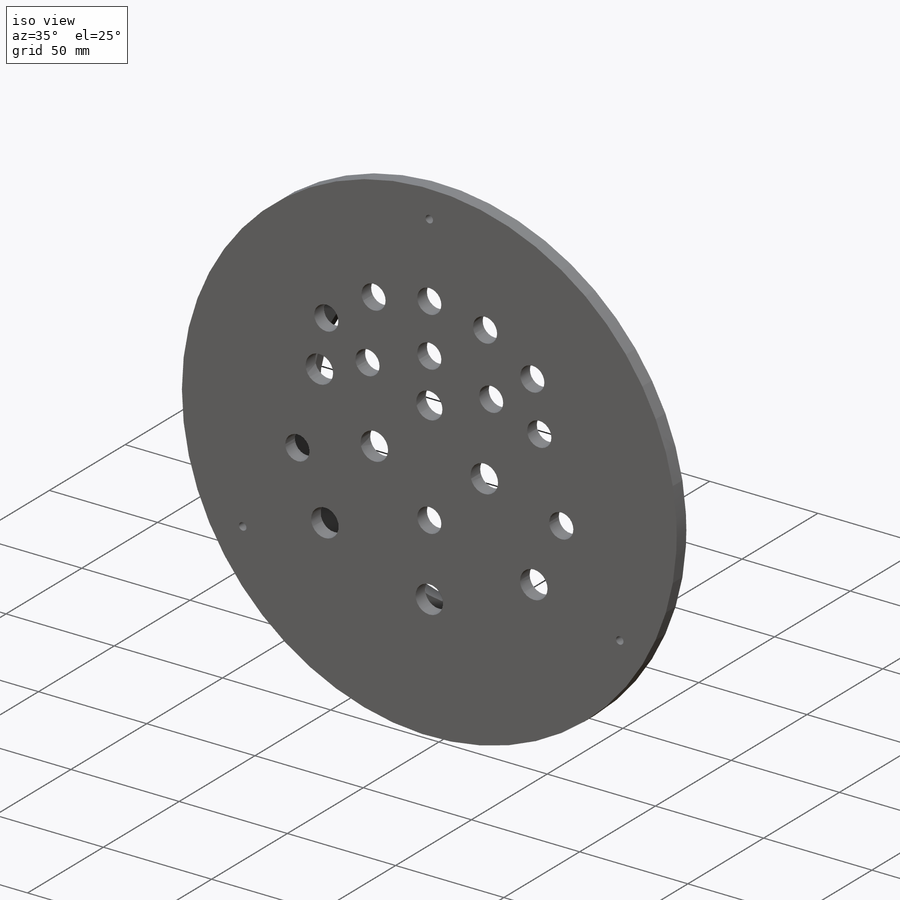
[diagram: iso view]
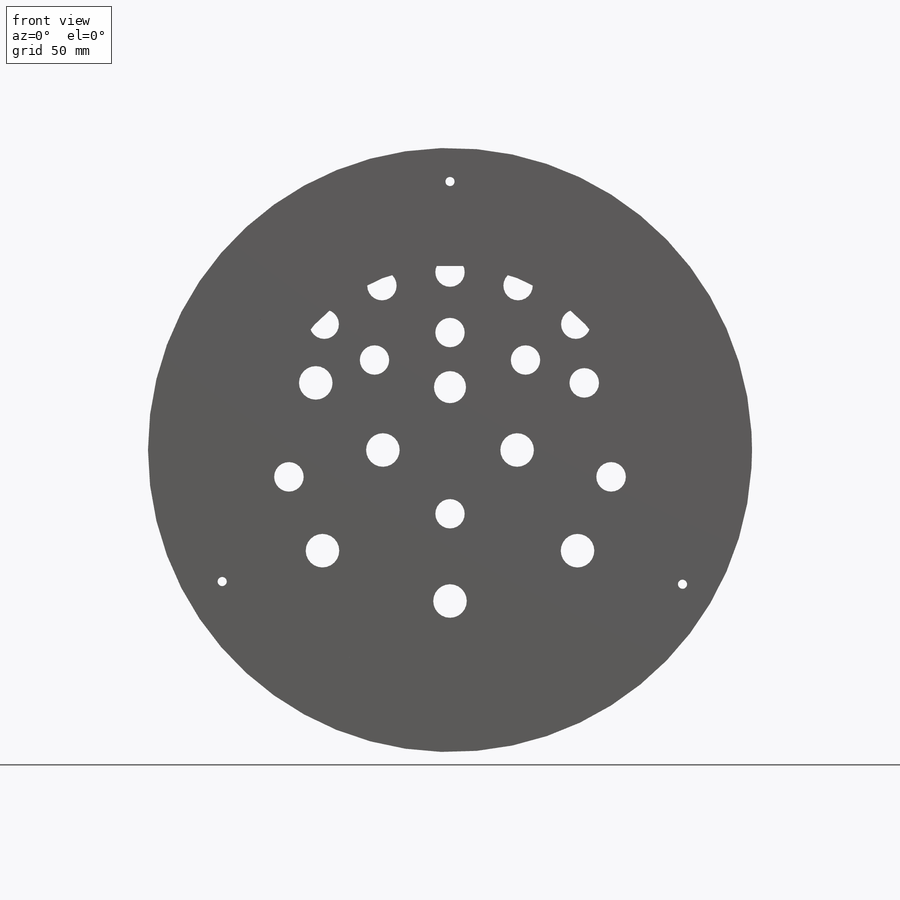
[diagram: front view]
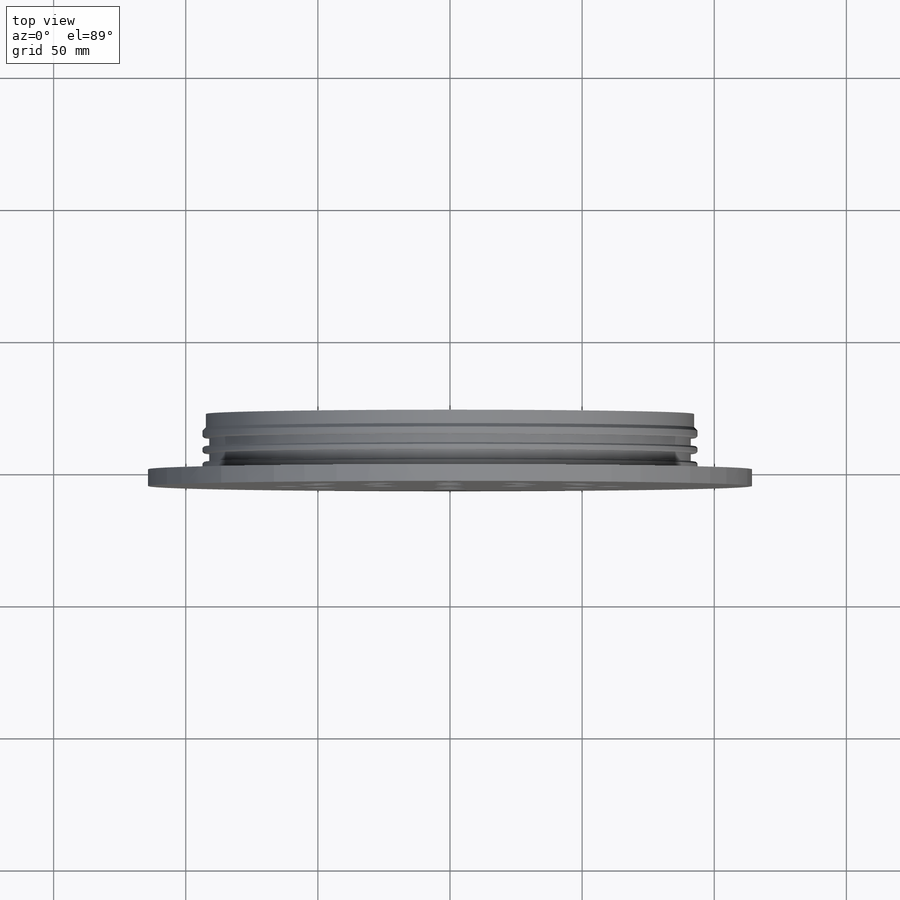
[diagram: top view]
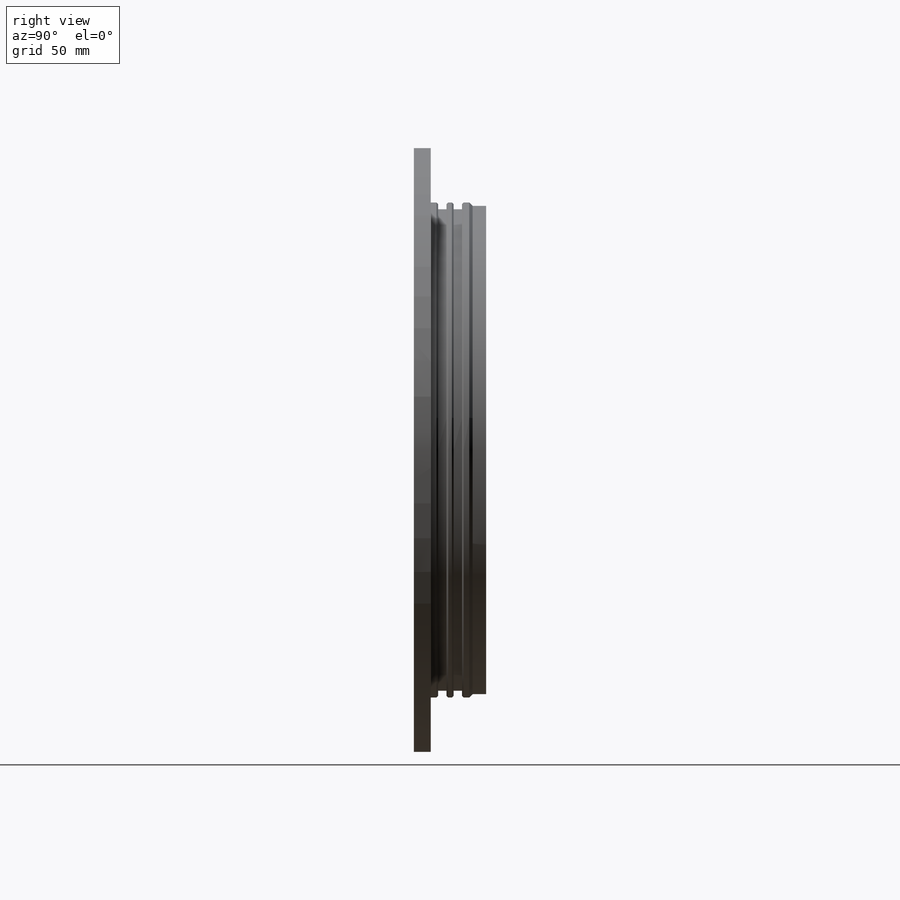
[diagram: right view]
SOLIDWORKS PART (.sldprt)
format: sldprt  version: not decoded by parser v0  size: 594,432 bytes
history: native  units: mm
features: sketch x18, cut_extrude x10, thread x7, extrude x3, chamfer x2, hole x2, material x1, cut_revolve x1 (+11 scaffold rows collapsed)
feature tree (55):
  scaffold x11  (default folders/planes/origin — collapsed)
  material  "6061-T6 (SS)"
  sketch  "Sketch1"  dims[D1=228.6mm]
  extrude  "Extrude1"  Depth=6.35mm
  sketch  "Sketch2"  dims[D1=187.325mm]
  extrude  "Extrude2"  Depth=15.875mm
  sketch  "Sketch3"  dims[D1=174.625mm]
  cut_extrude  "Cut-Extrude1"  Depth=15.875mm
  sketch  "Sketch4"  dims[D1=2.54mm D2=3.175mm D3=~2.808412mm D4=~2.681079mm]
  cut_revolve  "Cut-Revolve1"  Angle=360deg
  chamfer  "Chamfer1"  Distance=1.27mm Angle=45deg
  chamfer  "Chamfer2"  Distance=0.635mm Angle=45deg
  sketch  "Sketch9"  dims[D1=12.7mm D2=38.1mm D3=48.26mm]
  cut_extrude  "Cut-Extrude2"  [1 undecoded]
  sketch  "Sketch11"  dims[c1.D1=9.525mm c1.D3=9.525mm c2.D1=11.1125mm c2.D2=11.1125mm c2.D3=9.525mm c2.D6=11.1125mm c3.D3=76.2mm c3.D4=82.55mm c4.D4=45.0deg c4.D3=67.31mm c4.D5=~48.980416mm c5.D5=22.5deg]
  cut_extrude  "Cut-Extrude4"  [1 undecoded]
  sketch  "Sketch12"  dims[D1=12.7mm D3=12.7mm D2=57.15mm D4=57.15mm D5=25.4mm]
  cut_extrude  "Cut-Extrude5"  [1 undecoded]
  sketch  "Sketch13"  dims[c1.D1=11.1125mm c1.D3=44.45mm c1.D4=~44.752316mm c2.D4=40.0deg c2.D2=2.0]
  cut_extrude  "Cut-Extrude6"  [1 undecoded]
  sketch  "Sketch17"  dims[D1=139.7mm]
  extrude  "Boss-Extrude1"  Depth=5.08mm
  hole  "#12-24 Tapped Hole1"  Diameter=4.4958mm Depth=14.224mm
  sketch  "Sketch21"  dims[D1=158.75mm]
  sketch  "Sketch20"  dims[hole-wizard template sketch: 46 standard entries collapsed; hole parameters kept: c15.Tap Drill Dia.=4.4958mm c15.Tap Drill Depth=14.224mm c15.D3=~14.816244mm c15.Drill Angle=180.0deg]
  thread  "Hole Thread9"  Diameter=5.08mm  [1 undecoded]
  thread  "Hole Thread10"  Diameter=5.08mm  [1 undecoded]
  thread  "Hole Thread11"  Diameter=5.08mm  [1 undecoded]
  thread  "Hole Thread12"  Diameter=5.08mm  [1 undecoded]
  hole  "#8-32 Tapped Hole1"  Diameter=3.4544mm Depth=10.668mm
  sketch  "Sketch23"  dims[c1.D3=203.2mm c1.D1=~56.641767mm c2.D1=120.0deg c2.D2=~49.772269mm c3.D2=120.0deg]
  sketch  "Sketch22"  dims[hole-wizard template sketch: 47 standard entries collapsed; hole parameters kept: c15.Tap Drill Depth=10.668mm c15.D3=~14.816244mm c15.Drill Angle=180.0deg]
  thread  "Hole Thread13"  Diameter=6.35mm  [1 undecoded]
  thread  "Hole Thread14"  Diameter=6.35mm  [1 undecoded]
  thread  "Hole Thread15"  Diameter=6.35mm  [1 undecoded]
  sketch  "Sketch25"  dims[D1=11.176mm D2=60.96mm D3=10.16mm]
  cut_extrude  "Cut-Extrude8"  [1 undecoded]
  sketch  "Sketch24"  dims[D1=12.7mm D2=25.4mm D3=50.8mm]
  cut_extrude  "Cut-Extrude7"  [1 undecoded]
  sketch  "Sketch26"  dims[D1=11.176mm]
  cut_extrude  "Cut-Extrude9"  [1 undecoded]
  sketch  "Sketch27"  dims[D1=11.1125mm D2=13.97mm]
  cut_extrude  "Cut-Extrude10"  [1 undecoded]
  sketch  "Sketch28"
  cut_extrude  "Cut-Extrude11"  [1 undecoded]
decode coverage: 33 of 43 modeling features carry decoded parameters
note: ~ marks probable driven/reference dimensions
note: 16 parameter values undecoded
summary: no parameter record found for 9 features
note: suppression state not decoded; provenance and decode notes live in map.json
